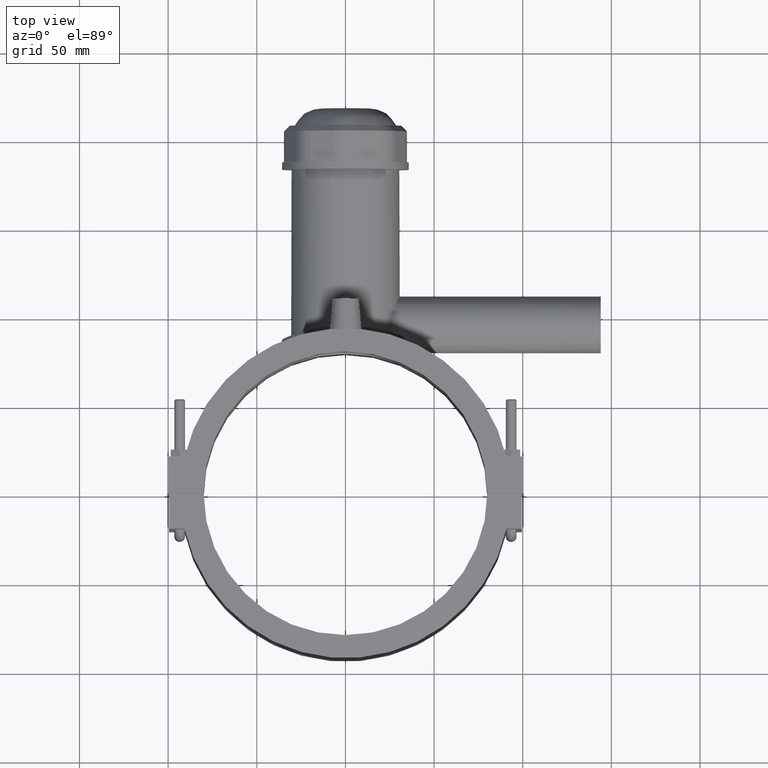
[diagram: clean part render]
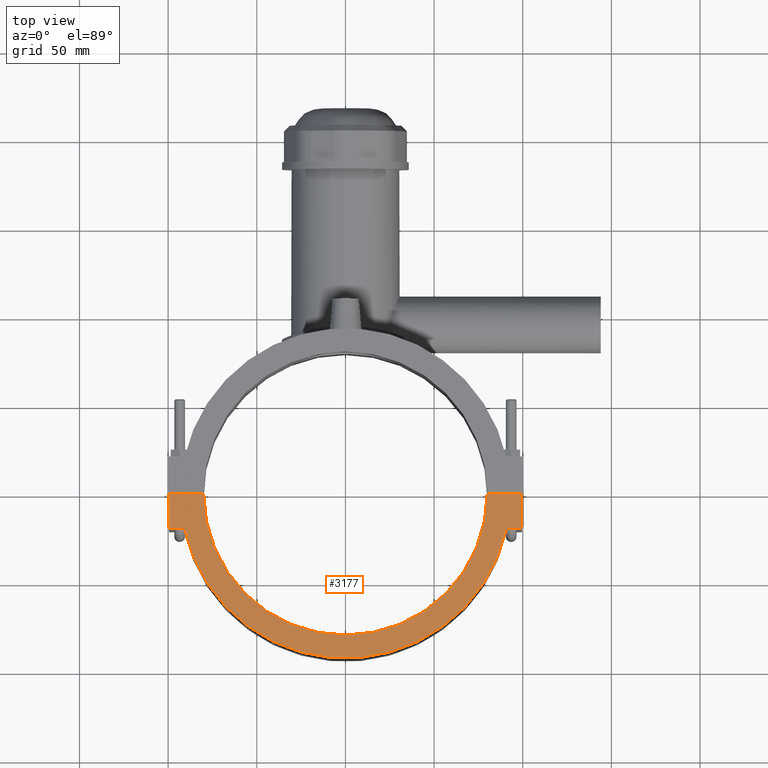
[diagram: same view with one face highlighted and labeled with its STEP entity id]
A machine part, top view. The second image highlights one B-rep face of the part: STEP entity #3177.
In plain terms, the highlighted planar face has unit normal (0, 0, 1).
Its self-contained STEP definition (entity closure, byte-faithful):
#120=LINE('',#5343,#399);
#142=LINE('',#5456,#421);
#264=LINE('',#6135,#543);
#305=LINE('',#6419,#584);
#307=LINE('',#6422,#586);
#312=LINE('',#6436,#591);
#399=VECTOR('',#3741,8.6514195157679);
#421=VECTOR('',#3793,8.6514195157679);
#543=VECTOR('',#4123,19.95);
#584=VECTOR('',#4256,19.5000156250015);
#586=VECTOR('',#4260,19.95);
#591=VECTOR('',#4279,19.5000156250016);
#700=PLANE('',#3456);
#755=CIRCLE('',#3291,93.024);
#809=CIRCLE('',#3454,80.);
#1035=FACE_OUTER_BOUND('',#1264,.T.);
#1264=EDGE_LOOP('',(#2889,#2890,#2891,#2892,#2893,#2894,#2895,#2896));
#1434=VERTEX_POINT('',#5340);
#1435=VERTEX_POINT('',#5342);
#1449=VERTEX_POINT('',#5398);
#1463=VERTEX_POINT('',#5454);
#1578=VERTEX_POINT('',#6134);
#1617=VERTEX_POINT('',#6416);
#1618=VERTEX_POINT('',#6418);
#1620=VERTEX_POINT('',#6430);
#1770=EDGE_CURVE('',#1435,#1434,#120,.T.);
#1787=EDGE_CURVE('',#1434,#1449,#755,.T.);
#1805=EDGE_CURVE('',#1449,#1463,#142,.T.);
#1978=EDGE_CURVE('',#1578,#1435,#264,.T.);
#2044=EDGE_CURVE('',#1618,#1617,#305,.T.);
#2046=EDGE_CURVE('',#1463,#1618,#307,.T.);
#2051=EDGE_CURVE('',#1617,#1620,#809,.T.);
#2053=EDGE_CURVE('',#1620,#1578,#312,.T.);
#2889=ORIENTED_EDGE('',*,*,#2044,.T.);
#2890=ORIENTED_EDGE('',*,*,#2051,.T.);
#2891=ORIENTED_EDGE('',*,*,#2053,.T.);
#2892=ORIENTED_EDGE('',*,*,#1978,.T.);
#2893=ORIENTED_EDGE('',*,*,#1770,.T.);
#2894=ORIENTED_EDGE('',*,*,#1787,.T.);
#2895=ORIENTED_EDGE('',*,*,#1805,.T.);
#2896=ORIENTED_EDGE('',*,*,#2046,.T.);
#3177=ADVANCED_FACE('',(#1035),#700,.T.);
#3291=AXIS2_PLACEMENT_3D('',#5399,#3766,#3767);
#3454=AXIS2_PLACEMENT_3D('',#6432,#4272,#4273);
#3456=AXIS2_PLACEMENT_3D('',#6435,#4277,#4278);
#3741=DIRECTION('',(1.,0.,0.));
#3766=DIRECTION('center_axis',(0.,0.,1.));
#3767=DIRECTION('ref_axis',(-0.976614427290077,-0.21499828001376,0.));
#3793=DIRECTION('',(1.,0.,0.));
#4123=DIRECTION('',(0.,-1.,0.));
#4256=DIRECTION('',(-1.,-1.74344067937368E-19,0.));
#4260=DIRECTION('',(0.,1.,0.));
#4272=DIRECTION('center_axis',(0.,0.,-1.));
#4273=DIRECTION('ref_axis',(-1.,0.,0.));
#4277=DIRECTION('center_axis',(0.,0.,1.));
#4278=DIRECTION('ref_axis',(1.,0.,0.));
#4279=DIRECTION('',(-1.,-1.74344067937368E-19,0.));
#5340=CARTESIAN_POINT('',(-90.8485804842321,-20.,59.));
#5342=CARTESIAN_POINT('',(-99.5,-20.,59.));
#5343=CARTESIAN_POINT('',(-99.5,-20.,59.));
#5398=CARTESIAN_POINT('',(90.8485804842321,-20.,59.));
#5399=CARTESIAN_POINT('Origin',(0.,0.,59.));
#5454=CARTESIAN_POINT('',(99.5,-20.,59.));
#5456=CARTESIAN_POINT('',(88.9799977523039,-20.,59.));
#6134=CARTESIAN_POINT('',(-99.5,-0.0500000000000078,59.));
#6135=CARTESIAN_POINT('',(-99.5,20.,59.));
#6416=CARTESIAN_POINT('',(79.9999843749985,-0.0500000000000078,59.));
#6418=CARTESIAN_POINT('',(99.5,-0.0500000000000078,59.));
#6419=CARTESIAN_POINT('',(-97.396008539393,-0.0500000000000078,59.));
#6422=CARTESIAN_POINT('',(99.5,-20.,59.));
#6430=CARTESIAN_POINT('',(-79.9999843749985,-0.0500000000000078,59.));
#6432=CARTESIAN_POINT('Origin',(0.,0.,59.));
#6435=CARTESIAN_POINT('Origin',(-95.292017078786,4.30235360662464E-16,59.));
#6436=CARTESIAN_POINT('',(-97.396008539393,-0.0500000000000078,59.));